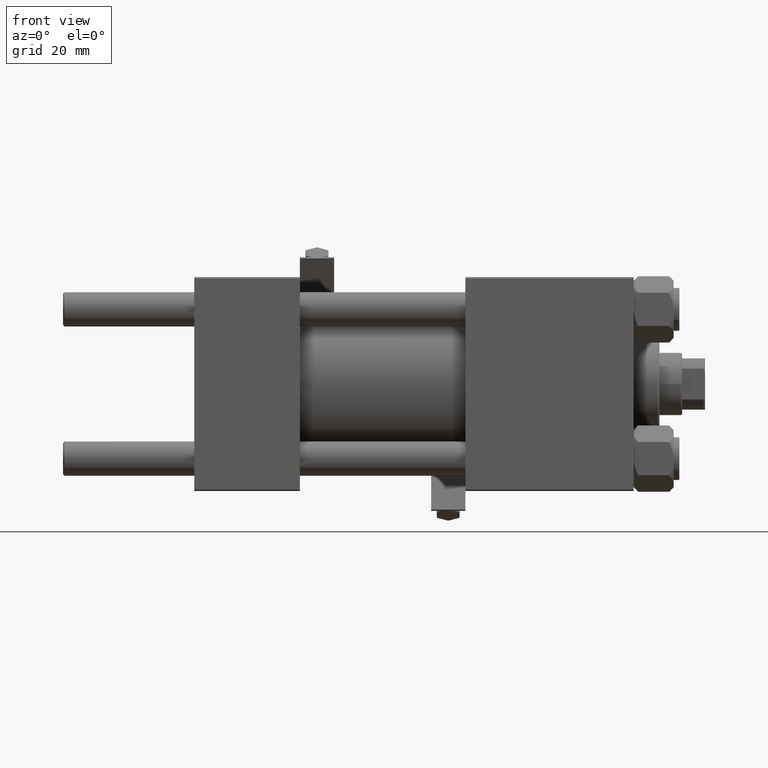
[diagram: clean part render]
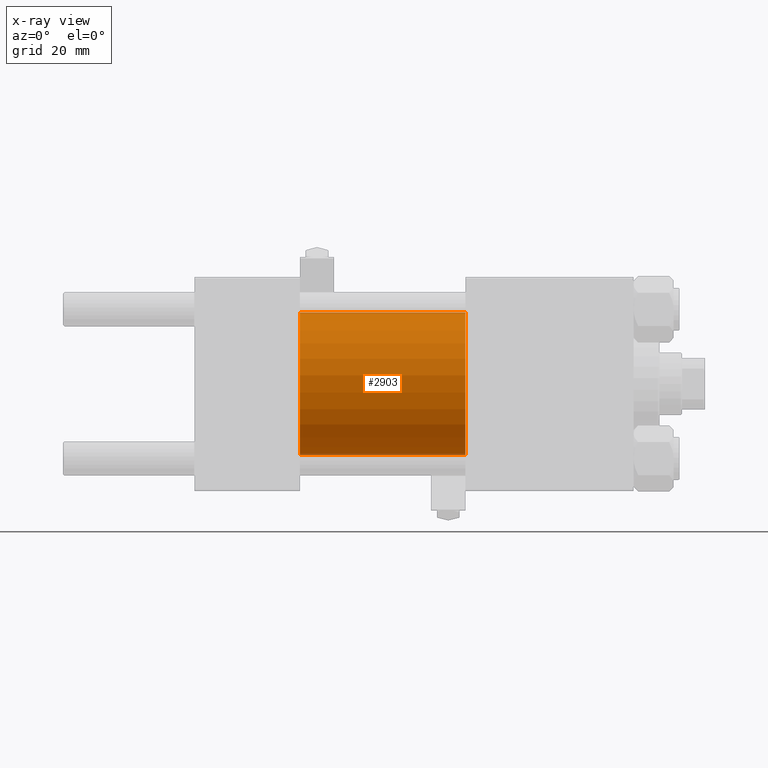
[diagram: x-ray — body ghosted, one internal face saturated and labeled with its STEP entity id]
A machine part, front view, then the same camera in x-ray: the body is ghosted and one INTERNAL B-rep face — a face not visible from any outside direction — is saturated and labeled: STEP entity #2903.
In plain terms, the highlighted cylindrical surface (partial cylindrical patch) has radius 25 mm, axis along (-1, -0, -0).
Its self-contained STEP definition (entity closure, byte-faithful):
#1272 = DIRECTION ( 'NONE',  ( 1.000000000000000000, 0.000000000000000000, 0.000000000000000000 ) ) ;
#2903 = ADVANCED_FACE ( 'NONE', ( #17972 ), #14120, .F. ) ;
#7104 = ORIENTED_EDGE ( 'NONE', *, *, #37272, .F. ) ;
#7425 = CARTESIAN_POINT ( 'NONE',  ( 37.00000000000000000, 3.061616997868382254E-15, -25.00000000000000000 ) ) ;
#7883 = DIRECTION ( 'NONE',  ( -1.000000000000000000, -0.000000000000000000, -0.000000000000000000 ) ) ;
#11219 = LINE ( 'NONE', #31242, #36959 ) ;
#11795 = VECTOR ( 'NONE', #24987, 1000.000000000000000 ) ;
#12416 = AXIS2_PLACEMENT_3D ( 'NONE', #47729, #47476, #39255 ) ;
#14049 = CIRCLE ( 'NONE', #12416, 25.00000000000000000 ) ;
#14120 = CYLINDRICAL_SURFACE ( 'NONE', #44107, 25.00000000000000000 ) ;
#14315 = CARTESIAN_POINT ( 'NONE',  ( 37.00000000000000000, 0.000000000000000000, 25.00000000000000000 ) ) ;
#16932 = DIRECTION ( 'NONE',  ( 0.000000000000000000, 0.000000000000000000, -1.000000000000000000 ) ) ;
#17020 = CARTESIAN_POINT ( 'NONE',  ( 95.00000000000000000, 0.000000000000000000, 25.00000000000000000 ) ) ;
#17281 = LINE ( 'NONE', #17020, #11795 ) ;
#17468 = DIRECTION ( 'NONE',  ( -1.000000000000000000, -0.000000000000000000, -0.000000000000000000 ) ) ;
#17972 = FACE_OUTER_BOUND ( 'NONE', #19541, .T. ) ;
#19541 = EDGE_LOOP ( 'NONE', ( #38945, #42983, #7104, #38860 ) ) ;
#20537 = CARTESIAN_POINT ( 'NONE',  ( 37.00000000000000000, 0.000000000000000000, 0.000000000000000000 ) ) ;
#22200 = EDGE_CURVE ( 'NONE', #50118, #43033, #17281, .T. ) ;
#24987 = DIRECTION ( 'NONE',  ( -1.000000000000000000, -0.000000000000000000, -0.000000000000000000 ) ) ;
#27851 = VERTEX_POINT ( 'NONE', #42363 ) ;
#28281 = CIRCLE ( 'NONE', #48780, 25.00000000000000000 ) ;
#28363 = EDGE_CURVE ( 'NONE', #27851, #42811, #11219, .T. ) ;
#29800 = EDGE_CURVE ( 'NONE', #50118, #27851, #14049, .T. ) ;
#31242 = CARTESIAN_POINT ( 'NONE',  ( 95.00000000000000000, 3.061616997868382254E-15, -25.00000000000000000 ) ) ;
#32876 = CARTESIAN_POINT ( 'NONE',  ( 95.00000000000000000, 0.000000000000000000, 0.000000000000000000 ) ) ;
#36959 = VECTOR ( 'NONE', #7883, 1000.000000000000000 ) ;
#37272 = EDGE_CURVE ( 'NONE', #43033, #42811, #28281, .T. ) ;
#38860 = ORIENTED_EDGE ( 'NONE', *, *, #22200, .F. ) ;
#38945 = ORIENTED_EDGE ( 'NONE', *, *, #29800, .T. ) ;
#39255 = DIRECTION ( 'NONE',  ( 0.000000000000000000, 0.000000000000000000, -1.000000000000000000 ) ) ;
#41349 = DIRECTION ( 'NONE',  ( 0.000000000000000000, 0.000000000000000000, 1.000000000000000000 ) ) ;
#42363 = CARTESIAN_POINT ( 'NONE',  ( 95.00000000000000000, 3.061616997868382254E-15, -25.00000000000000000 ) ) ;
#42811 = VERTEX_POINT ( 'NONE', #7425 ) ;
#42983 = ORIENTED_EDGE ( 'NONE', *, *, #28363, .T. ) ;
#43033 = VERTEX_POINT ( 'NONE', #14315 ) ;
#44107 = AXIS2_PLACEMENT_3D ( 'NONE', #32876, #17468, #41349 ) ;
#46798 = CARTESIAN_POINT ( 'NONE',  ( 95.00000000000000000, 0.000000000000000000, 25.00000000000000000 ) ) ;
#47476 = DIRECTION ( 'NONE',  ( 1.000000000000000000, 0.000000000000000000, 0.000000000000000000 ) ) ;
#47729 = CARTESIAN_POINT ( 'NONE',  ( 95.00000000000000000, 0.000000000000000000, 0.000000000000000000 ) ) ;
#48780 = AXIS2_PLACEMENT_3D ( 'NONE', #20537, #1272, #16932 ) ;
#50118 = VERTEX_POINT ( 'NONE', #46798 ) ;